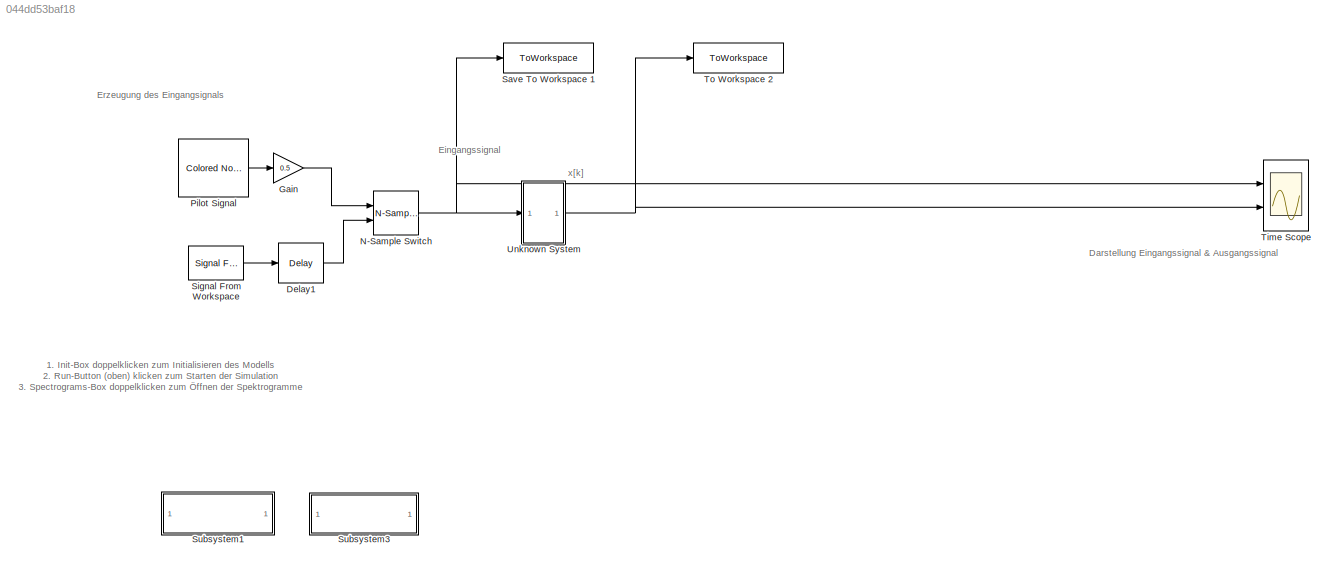
MODEL slx_044dd53baf18
KIND model
CONFIG AbsTol = auto
CONFIG EnableMultiTasking = off
CONFIG FixedStep = auto
CONFIG MaxStep = auto
CONFIG MinStep = auto
CONFIG RelTol = 1e-3
CONFIG SampleTimeConstraint = Unconstrained
CONFIG SolverName = FixedStepDiscrete
CONFIG StartTime = 0.0
CONFIG StopTime = TSim
WORKSPACE source: mxarray member
WORKSPACE LengthOfPilot = 16000
BLOCK [Delay] Delay1
  DelayLength = lenPilotSig
  InputPortMap = u0
  InputProcessing = Columns as channels (frame based)
  Ports = [1, 1]
BLOCK [Gain] Gain
  Gain = 0.5
BLOCK [Reference] N-Sample Switch  REF=dspswit3/N-Sample
Switch
  Ports = [2, 1]
  SourceBlock = dspswit3/N-Sample\nSwitch
  SourceProductBaseCode = DS
  SourceType = N-Sample Switch
BLOCK [Reference] Pilot Signal  REF=dspsrcs4/Colored Noise
  Ports = [0, 1]
  SourceBlock = dspsrcs4/Colored Noise
  SourceProductBaseCode = DS
  SourceType = dsp.simulink.ColoredNoise
BLOCK [ToWorkspace] Save To Workspace 1
  FixptAsFi = on
  MaxDataPoints = inf
  Ports = [1]
  SampleTime = -1
  Save2DSignal = 2-D array (concatenate along first dimension)
  VariableName = org
BLOCK [Reference] Signal From Workspace  REF=dspsrcs4/Signal From
Workspace
  Ports = [0, 1]
  SourceBlock = dspsrcs4/Signal From\nWorkspace
  SourceProductBaseCode = DS
  SourceType = Signal From Workspace
BLOCK [SubSystem] Subsystem1
  OpenFcn = lenPilotSig= 16000; \n[s,fs]=audioread('bbauer8s.wav'); \nTSim =lenPilotSig/fs + length(s)/fs;
  Ports = []
  RequestExecContextInheritance = off
BLOCK [SubSystem] Subsystem3
  OpenFcn = if exist('out','var'), SpectrogramExample(out.org, fs); SpectrogramExample(out.x, fs); \nelse errordlg('You must run the simulation first.','DSP Blockset Demo Error'); end
  Ports = []
  RequestExecContextInheritance = off
BLOCK [Scope] Time Scope
  DefaultConfigurationName = spbscopes.TimeScopeBlockCfg
  Floating = off
  NumInputPorts = 2
  Ports = [2]
  ScopeSpecificationString = spbscopes.TimeScopeBlockCfg('CurrentConfiguration', extmgr.ConfigurationSet(extmgr.Configuration('Core','General UI',true),extmgr.Configuration('Core','Source UI',true),extmgr.Configuration('Sources','WiredSimulink',true,'DataLoggingVariableName','ScopeData1'),extmgr.Configuration('Visuals','Time Domain',true,'DisplayLayoutDimensions',[2 1],'DisplayPropertyDefaults',struct('YLabelReal','Amplitude'...<+2170ch>
  UserDataPersistent = on
BLOCK [ToWorkspace] To Workspace 2
  FixptAsFi = on
  MaxDataPoints = inf
  Ports = [1]
  SampleTime = -1
  Save2DSignal = 2-D array (concatenate along first dimension)
  VariableName = x
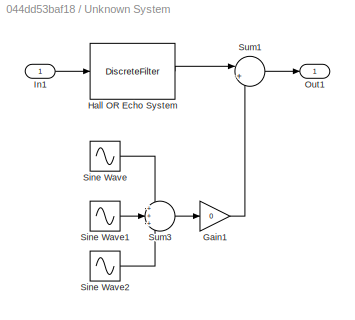
BLOCK [SubSystem] Unknown System
  Ports = [1, 1]
  RequestExecContextInheritance = off
BLOCK [Gain] Unknown System/Gain1
  Gain = 0
BLOCK [DiscreteFilter] Unknown System/Hall OR Echo System
  Denominator = [1 0 0 0 0 0 0 0 -0.9 ]
  FilterStructure = Direct form II transposed
  InputPortMap = u0
  InputProcessing = Columns as channels (frame based)
  Ports = [1, 1]
  a0EqualsOne = on
BLOCK [Inport] Unknown System/In1
BLOCK [Outport] Unknown System/Out1
BLOCK [Sin] Unknown System/Sine Wave
  Amplitude = 1./7.
  Frequency = 25/40*pi*8000
  Ports = [0, 1]
  SampleTime = 1/fs
BLOCK [Sin] Unknown System/Sine Wave1
  Amplitude = 1./7.
  Frequency = 25.1/40*pi*8000
  Ports = [0, 1]
  SampleTime = 1/fs
BLOCK [Sin] Unknown System/Sine Wave2
  Amplitude = 1./7.
  Frequency = 25/40*pi*8000
  Ports = [0, 1]
  SampleTime = 1/fs
BLOCK [Sum] Unknown System/Sum1
  InputSameDT = on
  Inputs = |++
  OutDataTypeStr = Inherit: Same as first input
  Ports = [2, 1]
  SaturateOnIntegerOverflow = on
BLOCK [Sum] Unknown System/Sum3
  InputSameDT = on
  Inputs = +++
  OutDataTypeStr = Inherit: Same as first input
  Ports = [3, 1]
  SaturateOnIntegerOverflow = on
ANNOTATION (root): 1. Init-Box doppelklicken zum Initialisieren des Modells 2. Run-Button (oben) klicken zum Starten der Simulation 3. Spectrograms-Box doppelklicken zum Öffnen der Spektrogramme
ANNOTATION (root): Darstellung Eingangssignal & Ausgangssignal
ANNOTATION (root): Eingangssignal
ANNOTATION (root): Erzeugung des Eingangsignals
ANNOTATION (root): x[k]
LINE Delay1:1 -> N-Sample Switch:2
LINE Gain:1 -> N-Sample Switch:1
NET N-Sample Switch:1 -> Save To Workspace 1:1, Time Scope:1, Unknown System:1
LINE Pilot Signal:1 -> Gain:1
LINE Signal From Workspace:1 -> Delay1:1
LINE Unknown System/Gain1:1 -> Unknown System/Sum1:2
LINE Unknown System/Hall OR Echo System:1 -> Unknown System/Sum1:1
LINE Unknown System/In1:1 -> Unknown System/Hall OR Echo System:1
LINE Unknown System/Sine Wave1:1 -> Unknown System/Sum3:2
LINE Unknown System/Sine Wave2:1 -> Unknown System/Sum3:3
LINE Unknown System/Sine Wave:1 -> Unknown System/Sum3:1
LINE Unknown System/Sum1:1 -> Unknown System/Out1:1
LINE Unknown System/Sum3:1 -> Unknown System/Gain1:1
NET Unknown System:1 -> Time Scope:2, To Workspace 2:1
note: NET lines group one-source signal fan-out (src -> all destinations, sorted); 1:1 wires keep LINE
